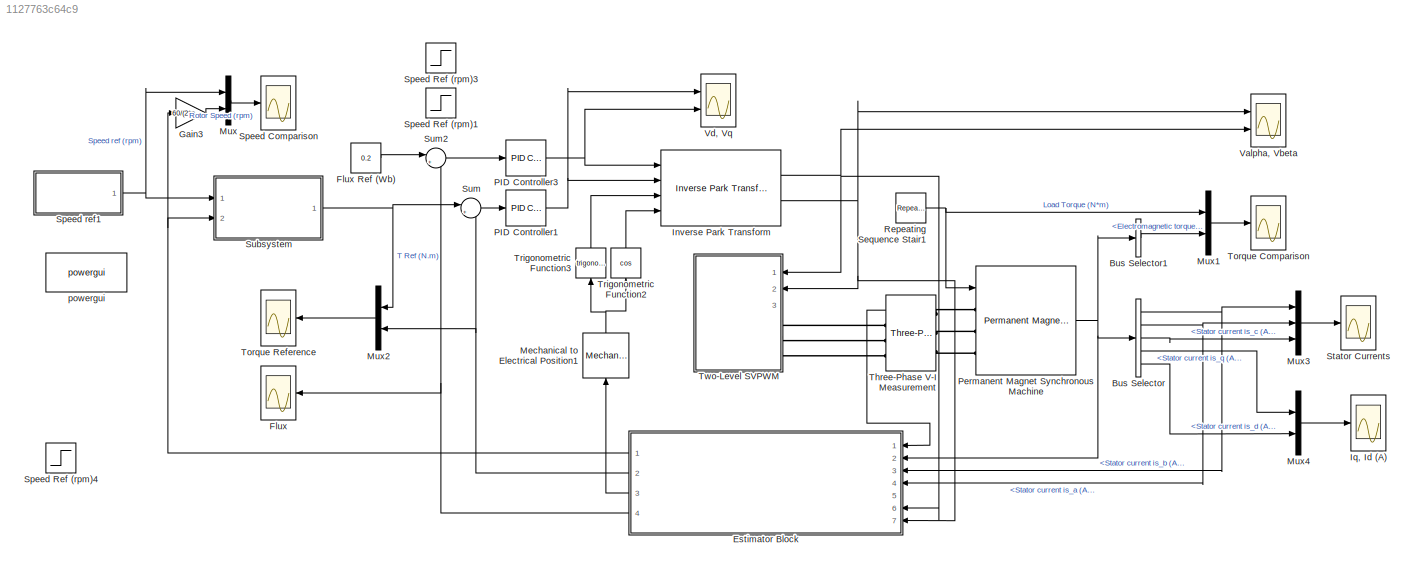
MODEL slx_1127763c64c9
KIND model
CONFIG AbsTol = auto
CONFIG EnableMultiTasking = off
CONFIG FixedStep = auto
CONFIG MaxStep = auto
CONFIG MinStep = auto
CONFIG RelTol = 1e-3
CONFIG SampleTimeConstraint = Unconstrained
CONFIG Solver = VariableStepAuto
CONFIG SolverName = VariableStepAuto
CONFIG StartTime = 0.0
CONFIG StopTime = 1
BLOCK [BusSelector] Bus Selector
  OutputSignals = Stator current is_b (A),Stator current is_a (A),Stator current is_c (A),Stator current is_q (A),Stator current is_d (A)
  Ports = [1, 5]
BLOCK [BusSelector] Bus Selector1
  OutputSignals = Electromagnetic torque Te (N*m)
  Ports = [1, 1]
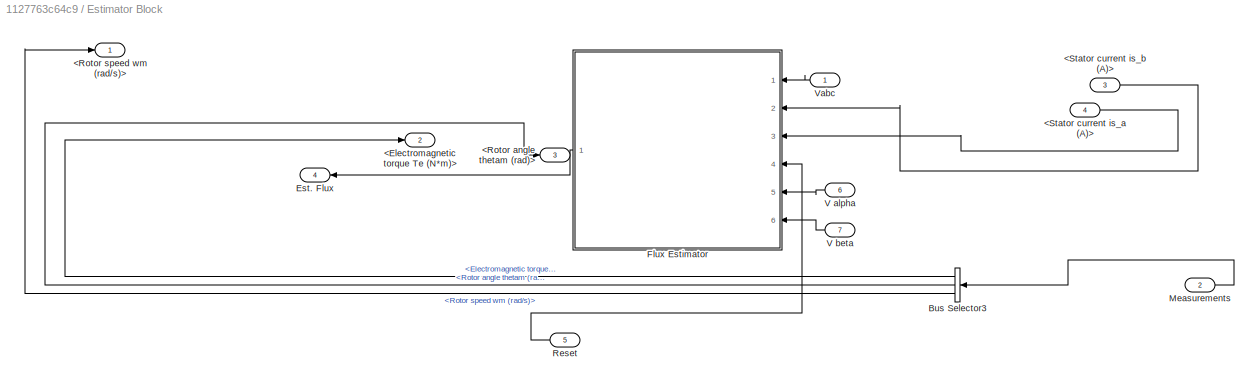
BLOCK [SubSystem] Estimator Block
  Ports = [7, 4]
  RequestExecContextInheritance = off
BLOCK [Outport] Estimator Block/<Electromagnetic torque Te (N*m)>
  Port = 2
BLOCK [Outport] Estimator Block/<Rotor angle thetam (rad)>
  Port = 3
BLOCK [Outport] Estimator Block/<Rotor speed wm (rad//s)>
BLOCK [Inport] Estimator Block/<Stator current is_a (A)>
  Port = 4
BLOCK [Inport] Estimator Block/<Stator current is_b (A)>
  Port = 3
BLOCK [BusSelector] Estimator Block/Bus Selector3
  OutputSignals = Electromagnetic torque Te (N*m),Rotor angle thetam (rad),Rotor speed wm (rad/s)
  Ports = [1, 3]
BLOCK [Outport] Estimator Block/Est. Flux
  Port = 4
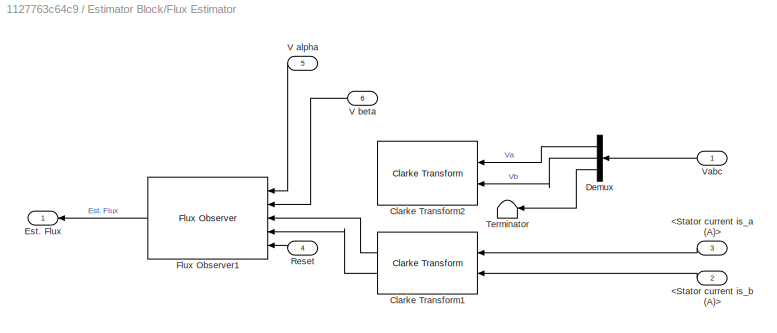
BLOCK [SubSystem] Estimator Block/Flux Estimator
  Ports = [6, 1]
  RequestExecContextInheritance = off
BLOCK [Inport] Estimator Block/Flux Estimator/<Stator current is_a (A)>
  Port = 3
BLOCK [Inport] Estimator Block/Flux Estimator/<Stator current is_b (A)>
  Port = 2
BLOCK [Reference] Estimator Block/Flux Estimator/Clarke Transform1  REF=mcbcontrolslib/Clarke Transform
  Ports = [2, 2]
  SourceBlock = mcbcontrolslib/Clarke Transform
  SourceProductBaseCode = MT
  SourceType = Clarke Transform
BLOCK [Reference] Estimator Block/Flux Estimator/Clarke Transform2  REF=mcbcontrolslib/Clarke Transform
  Ports = [2, 2]
  SourceBlock = mcbcontrolslib/Clarke Transform
  SourceProductBaseCode = MT
  SourceType = Clarke Transform
BLOCK [Demux] Estimator Block/Flux Estimator/Demux
  Outputs = 3
  Ports = [1, 3]
BLOCK [Outport] Estimator Block/Flux Estimator/Est. Flux
BLOCK [Reference] Estimator Block/Flux Estimator/Flux Observer1  REF=mcbpositiondecoderlib/Flux Observer
  Ports = [5, 1]
  SourceBlock = mcbpositiondecoderlib/Flux Observer
  SourceProductBaseCode = MT
  SourceType = Flux Observer
BLOCK [Inport] Estimator Block/Flux Estimator/Reset
  Port = 4
BLOCK [Terminator] Estimator Block/Flux Estimator/Terminator
BLOCK [Inport] Estimator Block/Flux Estimator/V alpha
  Port = 5
BLOCK [Inport] Estimator Block/Flux Estimator/V beta
  Port = 6
BLOCK [Inport] Estimator Block/Flux Estimator/Vabc
BLOCK [Inport] Estimator Block/Measurements
  Port = 2
BLOCK [Inport] Estimator Block/Reset
  Port = 5
BLOCK [Inport] Estimator Block/V alpha
  Port = 6
BLOCK [Inport] Estimator Block/V beta
  Port = 7
BLOCK [Inport] Estimator Block/Vabc
BLOCK [Scope] Flux
  Floating = off
  NumInputPorts = 1
  Ports = [1]
  ScopeSpecificationString = Simulink.scopes.TimeScopeBlockCfg('CurrentConfiguration', extmgr.ConfigurationSet(extmgr.Configuration('Core','General UI',true),extmgr.Configuration('Core','Source UI',true),extmgr.Configuration('Sources','WiredSimulink',true,'DataLoggingVariableName','Flux','DataLogging',true,'DataLoggingSaveFormat','Array'),extmgr.Configuration('Visuals','Time Domain',true,'SerializedDisplays',{struct('MinYLimR...<+1691ch>
BLOCK [Constant] Flux Ref (Wb)
  Value = 0.2
BLOCK [Gain] Gain3
  Gain = 60/(2*pi)
BLOCK [Reference] Inverse Park Transform  REF=mcbcontrolslib/Inverse Park Transform
  Ports = [4, 2]
  SourceBlock = mcbcontrolslib/Inverse Park Transform
  SourceProductBaseCode = MT
  SourceType = Inverse Park Transform
BLOCK [Scope] Iq, Id (A)
  Floating = off
  NumInputPorts = 1
  Ports = [1]
  ScopeSpecificationString = Simulink.scopes.TimeScopeBlockCfg('CurrentConfiguration', extmgr.ConfigurationSet(extmgr.Configuration('Core','General UI',true),extmgr.Configuration('Core','Source UI',true),extmgr.Configuration('Sources','WiredSimulink',true,'DataLoggingVariableName','Id_Iq','DataLogging',true,'DataLoggingSaveFormat','Array'),extmgr.Configuration('Visuals','Time Domain',true,'SerializedDisplays',{struct('MinYLim...<+1702ch>
BLOCK [Reference] Mechanical to Electrical Position1  REF=mcbpositiondecoderlib/Mechanical to Electrical Position
  NameLocation = left
  Ports = [1, 1]
  SourceBlock = mcbpositiondecoderlib/Mechanical to Electrical Position
  SourceProductBaseCode = MT
  SourceType = Mechanical to Electrical Position
BLOCK [Mux] Mux
  DisplayOption = bar
  Inputs = 2
  Ports = [2, 1]
BLOCK [Mux] Mux1
  DisplayOption = bar
  Inputs = 2
  Ports = [2, 1]
BLOCK [Mux] Mux2
  DisplayOption = bar
  Inputs = 2
  Ports = [2, 1]
BLOCK [Mux] Mux3
  DisplayOption = bar
  Inputs = 3
  Ports = [3, 1]
BLOCK [Mux] Mux4
  DisplayOption = bar
  Inputs = 2
  Ports = [2, 1]
BLOCK [Reference] PID Controller1  REF=simulink/Continuous/PID Controller
  Ports = [1, 1]
  SourceBlock = simulink/Continuous/PID Controller
  SourceProductBaseCode = SL
  SourceType = PID 1dof
BLOCK [Reference] PID Controller3  REF=simulink/Continuous/PID Controller
  Ports = [1, 1]
  SourceBlock = simulink/Continuous/PID Controller
  SourceProductBaseCode = SL
  SourceType = PID 1dof
BLOCK [Reference] Permanent Magnet Synchronous Machine  REF=powerlib/Machines/Permanent Magnet
Synchronous Machine
  Ports = [1, 1, 0, 0, 0, 3]
  SourceBlock = powerlib/Machines/Permanent Magnet\nSynchronous Machine
  SourceProductBaseCode = PS
  SourceType = Permanent Magnet Synchronous Machine
BLOCK [Reference] Repeating Sequence Stair1  REF=simulink/Sources/Repeating
Sequence
Stair
  Ports = [0, 1]
  SourceBlock = simulink/Sources/Repeating\nSequence\nStair
  SourceProductBaseCode = SL
  SourceType = Repeating Sequence Stair
BLOCK [Scope] Speed Comparison
  Floating = off
  NumInputPorts = 1
  Ports = [1]
  ScopeSpecificationString = Simulink.scopes.TimeScopeBlockCfg('CurrentConfiguration', extmgr.ConfigurationSet(extmgr.Configuration('Core','General UI',true),extmgr.Configuration('Core','Source UI',true),extmgr.Configuration('Sources','WiredSimulink',true,'DataLoggingVariableName','Speed','DataLogging',true,'DataLoggingSaveFormat','Array'),extmgr.Configuration('Visuals','Time Domain',true,'SerializedDisplays',{struct('MinYLim...<+1698ch>
BLOCK [Step] Speed Ref (rpm)1
  After = 200
  SampleTime = 0
  Time = 0.02
BLOCK [Step] Speed Ref (rpm)3
  After = 0.2
  Before = 0.2
  SampleTime = 0
  Time = 0.02
BLOCK [Step] Speed Ref (rpm)4
  After = 800
  SampleTime = 0
  Time = 0.1
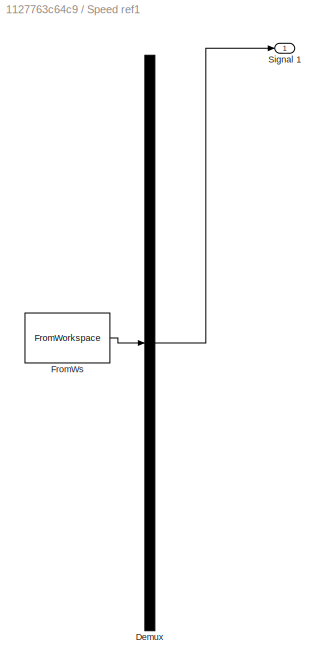
BLOCK [SubSystem] Speed ref1
  ClipboardFcn = sigbuilder_block('clipboard');
  CloseFcn = sigbuilder_block('close');
  ContinueFcn = sigbuilder_block('continue');
  CopyFcn = sigbuilder_block('copy');
  DeleteFcn = sigbuilder_block('delete');
  LoadFcn = sigbuilder_block('load',[5.4 30 1141.2 522.6 ]);
  MaskHideContents = on
  ModelCloseFcn = sigbuilder_block('modelClose');
  NameChangeFcn = sigbuilder_block('namechange');
  OpenFcn = sigbuilder_block('open',[5.4 30 1141.2 522.6 ]);
  PauseFcn = sigbuilder_block('pause');
  Ports = [0, 1]
  PreSaveFcn = sigbuilder_block('preSave');
  RequestExecContextInheritance = off
  StartFcn = sigbuilder_block('start');
  StopFcn = sigbuilder_block('stop');
  Tag = STV Subsys
BLOCK [Demux] Speed ref1/Demux
  DisplayOption = none
  Outputs = 1
  Ports = [1, 1]
  Tag = STV Demux
BLOCK [FromWorkspace] Speed ref1/FromWs
  SampleTime = 5e-6
  Tag = STV FromWs
  VariableName = tuvar
BLOCK [Outport] Speed ref1/Signal 1
  Tag = STV Outport
BLOCK [Scope] Stator Currents
  Floating = off
  NumInputPorts = 1
  Ports = [1]
  ScopeSpecificationString = Simulink.scopes.TimeScopeBlockCfg('CurrentConfiguration', extmgr.ConfigurationSet(extmgr.Configuration('Core','General UI',true),extmgr.Configuration('Core','Source UI',true),extmgr.Configuration('Sources','WiredSimulink',true,'DataLoggingVariableName','Stator_Currents','DataLogging',true,'DataLoggingSaveFormat','Array'),extmgr.Configuration('Visuals','Time Domain',true,'SerializedDisplays',{struc...<+1625ch>
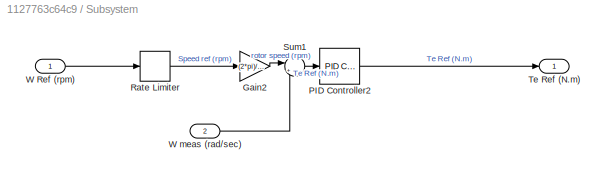
BLOCK [SubSystem] Subsystem
  Ports = [2, 1]
  RequestExecContextInheritance = off
BLOCK [Gain] Subsystem/Gain2
  Gain = (2*pi)/60
BLOCK [Reference] Subsystem/PID Controller2  REF=simulink/Continuous/PID Controller
  Ports = [1, 1]
  SourceBlock = simulink/Continuous/PID Controller
  SourceProductBaseCode = SL
  SourceType = PID 1dof
BLOCK [RateLimiter] Subsystem/Rate Limiter
  FallingSlewLimit = -(2000-0)/(0.088-0)
  RisingSlewLimit = (2000-0)/(0.088-0)
  SampleTimeMode = inherited
BLOCK [Sum] Subsystem/Sum1
  Inputs = |+-
  Ports = [2, 1]
BLOCK [Outport] Subsystem/Te Ref (N.m)
BLOCK [Inport] Subsystem/W Ref (rpm)
BLOCK [Inport] Subsystem/W meas (rad//sec)
  Port = 2
BLOCK [Sum] Sum
  Inputs = |+-
  Ports = [2, 1]
BLOCK [Sum] Sum2
  Inputs = |+-
  Ports = [2, 1]
BLOCK [Reference] Three-Phase V-I Measurement  REF=powerlib/Measurements/Three-Phase
V-I Measurement
  Ports = [0, 1, 0, 0, 0, 3, 3]
  SourceBlock = powerlib/Measurements/Three-Phase\nV-I Measurement
  SourceProductBaseCode = PS
  SourceType = Three-Phase VI Measurement
BLOCK [Scope] Torque Comparison
  Floating = off
  NumInputPorts = 1
  Ports = [1]
  ScopeSpecificationString = Simulink.scopes.TimeScopeBlockCfg('CurrentConfiguration', extmgr.ConfigurationSet(extmgr.Configuration('Core','General UI',true),extmgr.Configuration('Core','Source UI',true),extmgr.Configuration('Sources','WiredSimulink',true,'DataLogging',true,'DataLoggingVariableName','Load_Torque','DataLoggingSaveFormat','Array'),extmgr.Configuration('Visuals','Time Domain',true,'SerializedDisplays',{struct('M...<+1591ch>
BLOCK [Scope] Torque Reference
  Floating = off
  NumInputPorts = 1
  Ports = [1]
  ScopeSpecificationString = Simulink.scopes.TimeScopeBlockCfg('CurrentConfiguration', extmgr.ConfigurationSet(extmgr.Configuration('Core','General UI',true),extmgr.Configuration('Core','Source UI',true),extmgr.Configuration('Sources','WiredSimulink',true,'DataLoggingVariableName','Torque_Reference','DataLogging',true,'DataLoggingSaveFormat','Array'),extmgr.Configuration('Visuals','Time Domain',true,'SerializedDisplays',{stru...<+1743ch>
BLOCK [Trigonometry] Trigonometric Function2
  NameLocation = left
  Operator = cos
  Ports = [1, 1]
BLOCK [Trigonometry] Trigonometric Function3
  NameLocation = left
  Ports = [1, 1]
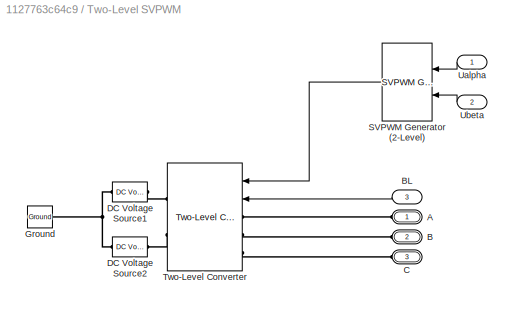
BLOCK [SubSystem] Two-Level SVPWM
  Ports = [3, 0, 0, 0, 0, 3]
  RequestExecContextInheritance = off
BLOCK [PMIOPort] Two-Level SVPWM/A
  Side = Left
BLOCK [PMIOPort] Two-Level SVPWM/B
  Port = 2
  Side = Left
BLOCK [Inport] Two-Level SVPWM/BL
  Port = 3
BLOCK [PMIOPort] Two-Level SVPWM/C
  Port = 3
  Side = Left
BLOCK [Reference] Two-Level SVPWM/DC Voltage Source1  REF=powerlib/Electrical
Sources/DC Voltage Source
  Ports = [0, 0, 0, 0, 0, 1, 1]
  SourceBlock = powerlib/Electrical\nSources/DC Voltage Source
  SourceProductBaseCode = PS
  SourceType = DC Voltage Source
BLOCK [Reference] Two-Level SVPWM/DC Voltage Source2  REF=powerlib/Electrical
Sources/DC Voltage Source
  Ports = [0, 0, 0, 0, 0, 1, 1]
  SourceBlock = powerlib/Electrical\nSources/DC Voltage Source
  SourceProductBaseCode = PS
  SourceType = DC Voltage Source
BLOCK [Reference] Two-Level SVPWM/Ground  REF=powerlib/Elements/Ground
  Ports = [0, 0, 0, 0, 0, 1]
  SourceBlock = powerlib/Elements/Ground
  SourceProductBaseCode = PS
  SourceType = Ground
BLOCK [Reference] Two-Level SVPWM/SVPWM Generator (2-Level)  REF=powerlib_meascontrol/Pulse & Signal
Generators/SVPWM Generator
(2-Level)
  Ports = [2, 1]
  SourceBlock = powerlib_meascontrol/Pulse & Signal\nGenerators/SVPWM Generator\n(2-Level)
  SourceProductBaseCode = PS
  SourceType = SVPWM Generator (2-Level)
BLOCK [Reference] Two-Level SVPWM/Two-Level Converter  REF=powerlib/Power
Electronics/Two-Level Converter
  Ports = [2, 0, 0, 0, 0, 3, 2]
  SourceBlock = powerlib/Power\nElectronics/Two-Level Converter
  SourceProductBaseCode = PS
  SourceType = Two-Level Converter
BLOCK [Inport] Two-Level SVPWM/Ualpha
BLOCK [Inport] Two-Level SVPWM/Ubeta
  Port = 2
BLOCK [Scope] Valpha, Vbeta
  Floating = off
  NumInputPorts = 2
  Ports = [2]
  ScopeSpecificationString = Simulink.scopes.TimeScopeBlockCfg('CurrentConfiguration', extmgr.ConfigurationSet(extmgr.Configuration('Core','General UI',true),extmgr.Configuration('Core','Source UI',true),extmgr.Configuration('Sources','WiredSimulink',true,'DataLoggingVariableName','ScopeData2'),extmgr.Configuration('Visuals','Time Domain',true,'SerializedDisplays',{struct('MinYLimReal','-601.43483','MaxYLimReal','765.06946','...<+2070ch>
BLOCK [Scope] Vd, Vq
  Floating = off
  NumInputPorts = 2
  Ports = [2]
  ScopeSpecificationString = Simulink.scopes.TimeScopeBlockCfg('CurrentConfiguration', extmgr.ConfigurationSet(extmgr.Configuration('Core','General UI',true),extmgr.Configuration('Core','Source UI',true),extmgr.Configuration('Sources','WiredSimulink',true,'DataLoggingVariableName','ScopeData3'),extmgr.Configuration('Visuals','Time Domain',true,'SerializedDisplays',{struct('MinYLimReal','-40.44307','MaxYLimReal','200.64182','Y...<+2069ch>
BLOCK [Reference] powergui  REF=powerlib/powergui
  Ports = []
  Priority = 1
  SourceBlock = powerlib/powergui
  SourceProductBaseCode = PS
  SourceType = PSB option menu block
LINE Bus Selector1:1 -> Mux1:2
NET Bus Selector:1 -> Estimator Block:3, Mux3:1
NET Bus Selector:2 -> Estimator Block:4, Mux3:2
LINE Bus Selector:3 -> Mux3:3
LINE Bus Selector:4 -> Mux4:1
LINE Bus Selector:5 -> Mux4:2
LINE Estimator Block/<Stator current is_a (A)>:1 -> Estimator Block/Flux Estimator:3
LINE Estimator Block/<Stator current is_b (A)>:1 -> Estimator Block/Flux Estimator:2
LINE Estimator Block/Bus Selector3:1 -> Estimator Block/<Electromagnetic torque Te (N*m)>:1
LINE Estimator Block/Bus Selector3:2 -> Estimator Block/<Rotor angle thetam (rad)>:1
LINE Estimator Block/Bus Selector3:3 -> Estimator Block/<Rotor speed wm (rad//s)>:1
LINE Estimator Block/Flux Estimator/<Stator current is_a (A)>:1 -> Estimator Block/Flux Estimator/Clarke Transform1:1
LINE Estimator Block/Flux Estimator/<Stator current is_b (A)>:1 -> Estimator Block/Flux Estimator/Clarke Transform1:2
LINE Estimator Block/Flux Estimator/Clarke Transform1:1 -> Estimator Block/Flux Estimator/Flux Observer1:3
LINE Estimator Block/Flux Estimator/Clarke Transform1:2 -> Estimator Block/Flux Estimator/Flux Observer1:4
LINE Estimator Block/Flux Estimator/Demux:1 -> Estimator Block/Flux Estimator/Clarke Transform2:1
LINE Estimator Block/Flux Estimator/Demux:2 -> Estimator Block/Flux Estimator/Clarke Transform2:2
LINE Estimator Block/Flux Estimator/Demux:3 -> Estimator Block/Flux Estimator/Terminator:1
LINE Estimator Block/Flux Estimator/Flux Observer1:1 -> Estimator Block/Flux Estimator/Est. Flux:1
LINE Estimator Block/Flux Estimator/Reset:1 -> Estimator Block/Flux Estimator/Flux Observer1:5
LINE Estimator Block/Flux Estimator/V alpha:1 -> Estimator Block/Flux Estimator/Flux Observer1:1
LINE Estimator Block/Flux Estimator/V beta:1 -> Estimator Block/Flux Estimator/Flux Observer1:2
LINE Estimator Block/Flux Estimator/Vabc:1 -> Estimator Block/Flux Estimator/Demux:1
LINE Estimator Block/Flux Estimator:1 -> Estimator Block/Est. Flux:1
LINE Estimator Block/Measurements:1 -> Estimator Block/Bus Selector3:1
LINE Estimator Block/Reset:1 -> Estimator Block/Flux Estimator:4
LINE Estimator Block/V alpha:1 -> Estimator Block/Flux Estimator:5
LINE Estimator Block/V beta:1 -> Estimator Block/Flux Estimator:6
LINE Estimator Block/Vabc:1 -> Estimator Block/Flux Estimator:1
NET Estimator Block:1 -> Gain3:1, Subsystem:2
NET Estimator Block:2 -> Mux2:2, Sum:2
LINE Estimator Block:3 -> Mechanical to Electrical Position1:1
NET Estimator Block:4 -> Flux:1, Sum2:2
LINE Flux Ref (Wb):1 -> Sum2:1
LINE Gain3:1 -> Mux:2
NET Inverse Park Transform:1 -> Estimator Block:6, Two-Level SVPWM:1, Valpha, Vbeta:2
NET Inverse Park Transform:2 -> Estimator Block:7, Two-Level SVPWM:2, Valpha, Vbeta:1
NET Mechanical to Electrical Position1:1 -> Trigonometric Function2:1, Trigonometric Function3:1
LINE Mux1:1 -> Torque Comparison:1
LINE Mux2:1 -> Torque Reference:1
LINE Mux3:1 -> Stator Currents:1
LINE Mux4:1 -> Iq, Id (A):1
LINE Mux:1 -> Speed Comparison:1
NET PID Controller1:1 -> Inverse Park Transform:2, Vd, Vq:1
NET PID Controller3:1 -> Inverse Park Transform:1, Vd, Vq:2
NET Permanent Magnet Synchronous Machine:1 -> Bus Selector1:1, Bus Selector:1, Estimator Block:2
NET Repeating Sequence Stair1:1 -> Mux1:1, Permanent Magnet Synchronous Machine:1
NET Speed ref1:1 -> Mux:1, Subsystem:1
LINE Subsystem/Gain2:1 -> Subsystem/Sum1:1
LINE Subsystem/PID Controller2:1 -> Subsystem/Te Ref (N.m):1
LINE Subsystem/Rate Limiter:1 -> Subsystem/Gain2:1
LINE Subsystem/Sum1:1 -> Subsystem/PID Controller2:1
LINE Subsystem/W Ref (rpm):1 -> Subsystem/Rate Limiter:1
LINE Subsystem/W meas (rad//sec):1 -> Subsystem/Sum1:2
NET Subsystem:1 -> Mux2:1, Sum:1
LINE Sum2:1 -> PID Controller3:1
LINE Sum:1 -> PID Controller1:1
LINE Three-Phase V-I Measurement:1 -> Estimator Block:1
LINE Trigonometric Function2:1 -> Inverse Park Transform:4
LINE Trigonometric Function3:1 -> Inverse Park Transform:3
LINE Two-Level SVPWM/BL:1 -> Two-Level SVPWM/Two-Level Converter:2
LINE Two-Level SVPWM/SVPWM Generator (2-Level):1 -> Two-Level SVPWM/Two-Level Converter:1
LINE Two-Level SVPWM/Ualpha:1 -> Two-Level SVPWM/SVPWM Generator (2-Level):1
LINE Two-Level SVPWM/Ubeta:1 -> Two-Level SVPWM/SVPWM Generator (2-Level):2
PLINE Permanent Magnet Synchronous Machine:LConn1 -- Three-Phase V-I Measurement:LConn1
PLINE Permanent Magnet Synchronous Machine:LConn2 -- Three-Phase V-I Measurement:LConn2
PLINE Permanent Magnet Synchronous Machine:LConn3 -- Three-Phase V-I Measurement:LConn3
PLINE Three-Phase V-I Measurement:RConn1 -- Two-Level SVPWM:LConn1
PLINE Three-Phase V-I Measurement:RConn2 -- Two-Level SVPWM:LConn2
PLINE Three-Phase V-I Measurement:RConn3 -- Two-Level SVPWM:LConn3
PLINE Two-Level SVPWM/A:RConn1 -- Two-Level SVPWM/Two-Level Converter:LConn1
PLINE Two-Level SVPWM/B:RConn1 -- Two-Level SVPWM/Two-Level Converter:LConn2
PLINE Two-Level SVPWM/C:RConn1 -- Two-Level SVPWM/Two-Level Converter:LConn3
PNET net1: Two-Level SVPWM/DC Voltage Source1:LConn1 -- Two-Level SVPWM/DC Voltage Source2:RConn1 -- Two-Level SVPWM/Ground:LConn1
PLINE Two-Level SVPWM/DC Voltage Source1:RConn1 -- Two-Level SVPWM/Two-Level Converter:RConn1
PLINE Two-Level SVPWM/DC Voltage Source2:LConn1 -- Two-Level SVPWM/Two-Level Converter:RConn2
note: NET lines group one-source signal fan-out (src -> all destinations, sorted); 1:1 wires keep LINE; PNET lines group multi-terminal physical nets as a canonical sorted terminal list (undirected conserving connections); 2-terminal nets keep the pairwise PLINE form
